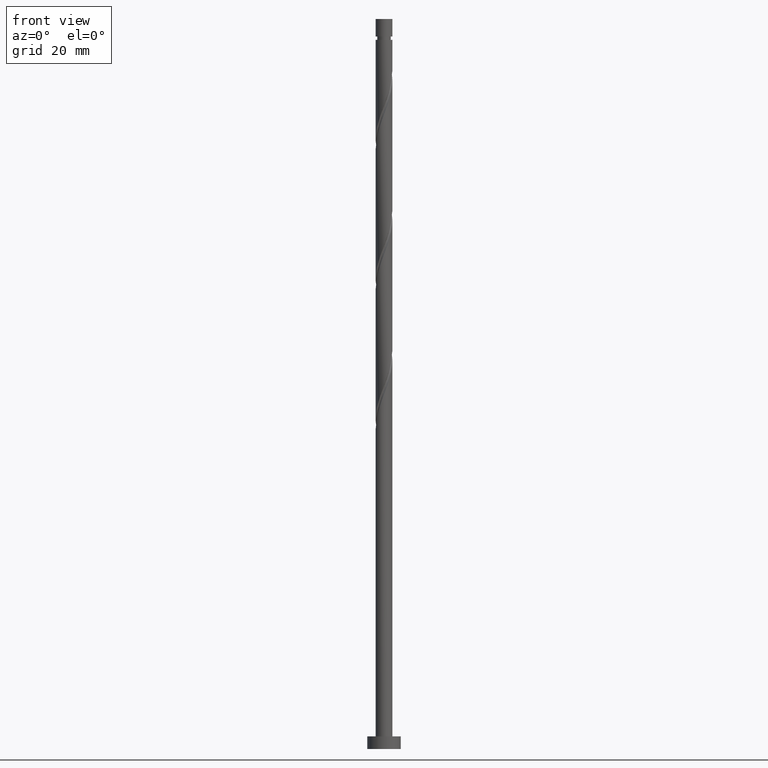
[diagram: clean part render]
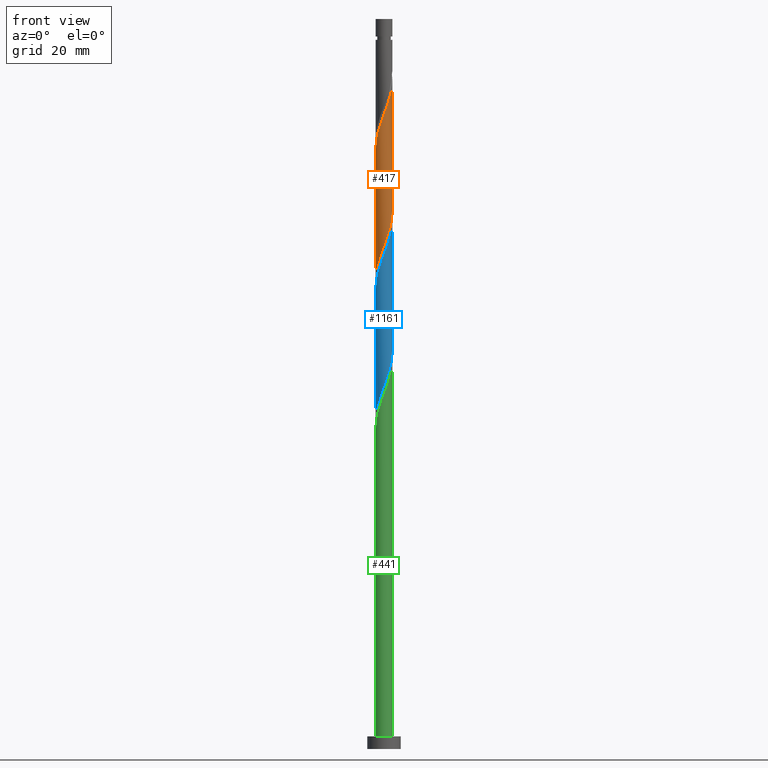
[diagram: same view with three faces highlighted in distinct colors, each labeled with its STEP entity id]
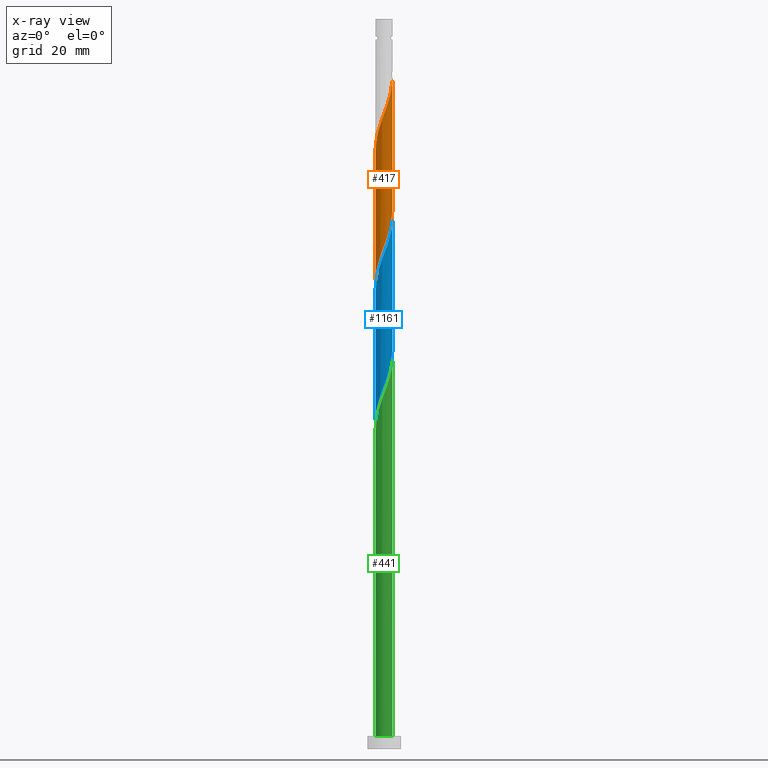
[diagram: x-ray of the same camera — body ghosted, the three highlighted faces saturated]
A machine part, front view with three faces highlighted in distinct colors.
The next image is the same camera in x-ray (body ghosted, the three faces saturated) — at least one of them is partly hidden behind the body in this view.
Their STEP definitions:

[orange] entity #417 — the highlighted cylindrical surface (edge-blend (fillet) strip) has radius 2 mm, axis along (-0, -0, -1).
#7 = FACE_OUTER_BOUND ( 'NONE', #585, .T. ) ;
#161 = VERTEX_POINT ( 'NONE', #1115 ) ;
#184 = DIRECTION ( 'NONE',  ( -1.000000000000000000, 0.000000000000000000, 0.000000000000000000 ) ) ;
#203 = CARTESIAN_POINT ( 'NONE',  ( -1.907602967534735461, -0.6560338701139452056, 144.5459606301413658 ) ) ;
#215 = CARTESIAN_POINT ( 'NONE',  ( 1.980049565276635670, -0.3856594865056713339, 158.4348495190302799 ) ) ;
#229 = CARTESIAN_POINT ( 'NONE',  ( 2.000000000000000000, 2.449293598294706414E-16, 173.8199999999999932 ) ) ;
#241 = CARTESIAN_POINT ( 'NONE',  ( -1.812764992401015629, -0.8849929959097647680, 113.9904050745857944 ) ) ;
#251 = CARTESIAN_POINT ( 'NONE',  ( 1.324015695162686468, -1.521943481029062628, 123.7126272968080087 ) ) ;
#260 = CARTESIAN_POINT ( 'NONE',  ( 1.907602967534731242, -0.6560338701139463158, 126.4904050745858086 ) ) ;
#324 = DIRECTION ( 'NONE',  ( -0.000000000000000000, -0.000000000000000000, -1.000000000000000000 ) ) ;
#330 = CARTESIAN_POINT ( 'NONE',  ( 0.6560338701139452056, -1.907602967534735461, 152.8792939634747086 ) ) ;
#341 = CARTESIAN_POINT ( 'NONE',  ( -1.672808912829665706, -1.127404036555502254, 145.9348495190303083 ) ) ;
#348 = CARTESIAN_POINT ( 'NONE',  ( 1.127404036555502032, -1.672808912829666150, 154.2681828523635374 ) ) ;
#365 = CARTESIAN_POINT ( 'NONE',  ( 1.999999999999999112, -0.2010075630518445844, 127.7149898050510757 ) ) ;
#374 = CARTESIAN_POINT ( 'NONE',  ( 0.8849929959097647680, -1.812764992401015629, 122.3237384079191372 ) ) ;
#405 = CARTESIAN_POINT ( 'NONE',  ( 1.959999999999999520, -0.3979949748426491740, 127.1848495190302799 ) ) ;
#417 = ADVANCED_FACE ( 'NONE', ( #7 ), #1100, .T. ) ;
#469 =( BOUNDED_CURVE ( )  B_SPLINE_CURVE ( 2, ( #1591, #365, #405, #260, #1224, #640, #1084, #251, #1581, #374, #921, #955, #540, #911, #1335, #1054, #1451, #1573, #1045, #1187, #1213, #241, #943, #1479, #1732, #788, #508 ),
 .UNSPECIFIED., .F., .T. ) 
 B_SPLINE_CURVE_WITH_KNOTS ( ( 3, 2, 2, 2, 2, 2, 2, 2, 2, 2, 2, 2, 2, 3 ),
 ( 0.5545317669814463502, 0.5625000000000000000, 0.5729166666666666297, 0.5833333333333333703, 0.5937500000000000000, 0.6041666666666666297, 0.6145833333333333703, 0.6250000000000000000, 0.6354166666666666297, 0.6458333333333333703, 0.6562500000000000000, 0.6666666666666666297, 0.6770833333333333703, 0.6795317669814463502 ),
 .UNSPECIFIED. ) 
 CURVE ( )  GEOMETRIC_REPRESENTATION_ITEM ( )  RATIONAL_B_SPLINE_CURVE ( ( 0.9062941362546468316, 0.9031415850403511358, 0.9090909090909264911, 0.9013135103398449699, 0.9090909090909264911, 0.9013135103398449699, 0.9090909090909264911, 0.9013135103398449699, 0.9090909090909264911, 0.9013135103398449699, 0.9090909090909264911, 0.9013135103398449699, 0.9090909090909264911, 0.9013135103398449699, 0.9090909090909264911, 0.9013135103398449699, 0.9090909090909264911, 0.9013135103398449699, 0.9090909090909264911, 0.9013135103398449699, 0.9090909090909264911, 0.9013135103398449699, 0.9090909090909264911, 0.9013135103398449699, 0.9090909090909264911, 0.9072628343904202142, 0.9062941362546468316 ) ) 
 REPRESENTATION_ITEM ( '' )  );
#472 = CARTESIAN_POINT ( 'NONE',  ( -0.6353262412077193000, -1.896407278838826871, 149.4070717412525084 ) ) ;
#499 = CARTESIAN_POINT ( 'NONE',  ( 1.996223298870952956, -0.1228517034671601366, 159.1292939634747086 ) ) ;
#508 = CARTESIAN_POINT ( 'NONE',  ( -1.999999999999999556, 2.587004708746268462E-15, 111.5817495075736616 ) ) ;
#540 = CARTESIAN_POINT ( 'NONE',  ( 0.1228517034671573194, -1.996223298870950735, 120.2404050745858370 ) ) ;
#585 = EDGE_LOOP ( 'NONE', ( #671, #1287, #1235, #1726 ) ) ;
#617 = CARTESIAN_POINT ( 'NONE',  ( -1.960000000000002629, -0.3979949748426490075, 143.8515161856969655 ) ) ;
#625 = CARTESIAN_POINT ( 'NONE',  ( -2.000000000000003997, -0.2010075630518375900, 143.3213758996760703 ) ) ;
#640 = CARTESIAN_POINT ( 'NONE',  ( 1.672808912829662153, -1.127404036555502698, 125.1015161856968945 ) ) ;
#644 = VECTOR ( 'NONE', #324, 1000.000000000000000 ) ;
#671 = ORIENTED_EDGE ( 'NONE', *, *, #1557, .F. ) ;
#684 = VERTEX_POINT ( 'NONE', #919 ) ;
#755 = CARTESIAN_POINT ( 'NONE',  ( 1.667354236715041127, -1.104504345536229115, 156.3515161856969371 ) ) ;
#788 = CARTESIAN_POINT ( 'NONE',  ( -2.000000000000000000, -0.06148390331534502040, 111.7449131956018107 ) ) ;
#838 = CARTESIAN_POINT ( 'NONE',  ( 0.000000000000000000, 0.000000000000000000, 173.8199999999999932 ) ) ;
#869 = CARTESIAN_POINT ( 'NONE',  ( -2.000000000000000000, 0.000000000000000000, 173.8199999999999932 ) ) ;
#877 = CARTESIAN_POINT ( 'NONE',  ( 2.000000000000002665, -2.243067666542991822E-16, 159.4546161971535128 ) ) ;
#886 = CARTESIAN_POINT ( 'NONE',  ( -1.324015695162690465, -1.521943481029064182, 147.3237384079191088 ) ) ;
#895 = AXIS2_PLACEMENT_3D ( 'NONE', #838, #1666, #184 ) ;
#896 = CARTESIAN_POINT ( 'NONE',  ( 1.521943481029064182, -1.324015695162690465, 155.6570717412525084 ) ) ;
#905 = CARTESIAN_POINT ( 'NONE',  ( 1.324673758792282996, -1.498412303996178307, 154.9626272968080229 ) ) ;
#911 = CARTESIAN_POINT ( 'NONE',  ( -0.1399560795713535588, -2.012397032465267355, 119.5459606301413800 ) ) ;
#919 = CARTESIAN_POINT ( 'NONE',  ( 2.000000000000000000, 2.459897540975497552E-15, 128.2484161742403614 ) ) ;
#921 = CARTESIAN_POINT ( 'NONE',  ( 0.6353262412077166355, -1.896407278838824650, 121.6292939634747228 ) ) ;
#943 = CARTESIAN_POINT ( 'NONE',  ( -1.896407278838824428, -0.6353262412077168575, 113.2959606301413942 ) ) ;
#955 = CARTESIAN_POINT ( 'NONE',  ( 0.3856594865056680588, -1.980049565276632562, 120.9348495190302657 ) ) ;
#1009 = LINE ( 'NONE', #869, #644 ) ;
#1022 = CARTESIAN_POINT ( 'NONE',  ( 0.1399560795713520878, -2.012397032465270019, 151.4904050745857944 ) ) ;
#1031 = CARTESIAN_POINT ( 'NONE',  ( -2.000000000000002665, -1.009380449944346221E-15, 142.7879495304868556 ) ) ;
#1039 = CARTESIAN_POINT ( 'NONE',  ( -0.8849929959097675436, -1.812764992401017849, 148.7126272968079945 ) ) ;
#1045 = CARTESIAN_POINT ( 'NONE',  ( -1.324673758792283218, -1.498412303996174755, 116.0737384079191514 ) ) ;
#1054 = CARTESIAN_POINT ( 'NONE',  ( -0.6560338701139454276, -1.907602967534731686, 118.1570717412524800 ) ) ;
#1084 = CARTESIAN_POINT ( 'NONE',  ( 1.498412303996174755, -1.324673758792283218, 124.4070717412524942 ) ) ;
#1100 = CYLINDRICAL_SURFACE ( 'NONE', #895, 2.000000000000000000 ) ;
#1115 = CARTESIAN_POINT ( 'NONE',  ( -1.999999999999999556, 2.587004708746268462E-15, 111.5817495075736616 ) ) ;
#1133 =( BOUNDED_CURVE ( )  B_SPLINE_CURVE ( 2, ( #1031, #625, #617, #203, #1553, #341, #1560, #886, #1176, #1039, #472, #1399, #1418, #1022, #1670, #330, #1699, #348, #905, #896, #755, #1436, #1430, #215, #499, #1150, #877 ),
 .UNSPECIFIED., .F., .T. ) 
 B_SPLINE_CURVE_WITH_KNOTS ( ( 3, 2, 2, 2, 2, 2, 2, 2, 2, 2, 2, 2, 2, 3 ),
 ( 0.5545317669814460171, 0.5625000000000000000, 0.5729166666666667407, 0.5833333333333332593, 0.5937500000000000000, 0.6041666666666667407, 0.6145833333333332593, 0.6250000000000000000, 0.6354166666666667407, 0.6458333333333332593, 0.6562500000000000000, 0.6666666666666667407, 0.6770833333333332593, 0.6795317669814456840 ),
 .UNSPECIFIED. ) 
 CURVE ( )  GEOMETRIC_REPRESENTATION_ITEM ( )  RATIONAL_B_SPLINE_CURVE ( ( 0.9062941362546530488, 0.9031415850403570200, 0.9090909090909324863, 0.9013135103398509651, 0.9090909090909324863, 0.9013135103398509651, 0.9090909090909324863, 0.9013135103398509651, 0.9090909090909324863, 0.9013135103398509651, 0.9090909090909324863, 0.9013135103398509651, 0.9090909090909324863, 0.9013135103398509651, 0.9090909090909324863, 0.9013135103398509651, 0.9090909090909324863, 0.9013135103398509651, 0.9090909090909324863, 0.9013135103398509651, 0.9090909090909324863, 0.9013135103398509651, 0.9090909090909324863, 0.9013135103398509651, 0.9090909090909324863, 0.9072628343904266535, 0.9062941362546532709 ) ) 
 REPRESENTATION_ITEM ( '' )  );
#1150 = CARTESIAN_POINT ( 'NONE',  ( 2.000000000000002220, -0.06148390331536186110, 159.2914525091253779 ) ) ;
#1176 = CARTESIAN_POINT ( 'NONE',  ( -1.104504345536228449, -1.667354236715041349, 148.0181828523635943 ) ) ;
#1187 = CARTESIAN_POINT ( 'NONE',  ( -1.521943481029062628, -1.324015695162687134, 115.3792939634746659 ) ) ;
#1213 = CARTESIAN_POINT ( 'NONE',  ( -1.667354236715039573, -1.104504345536226673, 114.6848495190302799 ) ) ;
#1224 = CARTESIAN_POINT ( 'NONE',  ( 1.790205940182196809, -0.8917189533347242847, 125.7959606301413658 ) ) ;
#1235 = ORIENTED_EDGE ( 'NONE', *, *, #1429, .T. ) ;
#1287 = ORIENTED_EDGE ( 'NONE', *, *, #1334, .F. ) ;
#1334 = EDGE_CURVE ( 'NONE', #1406, #1415, #1133, .T. ) ;
#1335 = CARTESIAN_POINT ( 'NONE',  ( -0.3979949748426491185, -1.959999999999999520, 118.8515161856969229 ) ) ;
#1399 = CARTESIAN_POINT ( 'NONE',  ( -0.3856594865056703347, -1.980049565276635670, 150.1015161856969371 ) ) ;
#1406 = VERTEX_POINT ( 'NONE', #1409 ) ;
#1409 = CARTESIAN_POINT ( 'NONE',  ( -2.000000000000002665, -1.009380449944346221E-15, 142.7879495304868556 ) ) ;
#1415 = VERTEX_POINT ( 'NONE', #1545 ) ;
#1418 = CARTESIAN_POINT ( 'NONE',  ( -0.1228517034671591374, -1.996223298870952956, 150.7959606301413658 ) ) ;
#1429 = EDGE_CURVE ( 'NONE', #1406, #161, #1009, .T. ) ;
#1430 = CARTESIAN_POINT ( 'NONE',  ( 1.896407278838826871, -0.6353262412077195220, 157.7404050745858228 ) ) ;
#1436 = CARTESIAN_POINT ( 'NONE',  ( 1.812764992401017849, -0.8849929959097676546, 157.0459606301413373 ) ) ;
#1451 = CARTESIAN_POINT ( 'NONE',  ( -0.8917189533347236186, -1.790205940182197697, 117.4626272968080372 ) ) ;
#1479 = CARTESIAN_POINT ( 'NONE',  ( -1.980049565276631895, -0.3856594865056686139, 112.6015161856969371 ) ) ;
#1541 = VECTOR ( 'NONE', #1611, 1000.000000000000000 ) ;
#1545 = CARTESIAN_POINT ( 'NONE',  ( 2.000000000000002665, -2.243067666542991822E-16, 159.4546161971535128 ) ) ;
#1553 = CARTESIAN_POINT ( 'NONE',  ( -1.790205940182200806, -0.8917189533347239516, 145.2404050745858228 ) ) ;
#1557 = EDGE_CURVE ( 'NONE', #1415, #684, #1706, .T. ) ;
#1560 = CARTESIAN_POINT ( 'NONE',  ( -1.498412303996177641, -1.324673758792283662, 146.6292939634747654 ) ) ;
#1573 = CARTESIAN_POINT ( 'NONE',  ( -1.127404036555501587, -1.672808912829662598, 116.7681828523635801 ) ) ;
#1581 = CARTESIAN_POINT ( 'NONE',  ( 1.104504345536226007, -1.667354236715040239, 123.0181828523635801 ) ) ;
#1591 = CARTESIAN_POINT ( 'NONE',  ( 2.000000000000000000, 2.459897540975497552E-15, 128.2484161742403614 ) ) ;
#1608 = EDGE_CURVE ( 'NONE', #684, #161, #469, .T. ) ;
#1611 = DIRECTION ( 'NONE',  ( -0.000000000000000000, -0.000000000000000000, -1.000000000000000000 ) ) ;
#1666 = DIRECTION ( 'NONE',  ( -0.000000000000000000, -0.000000000000000000, -1.000000000000000000 ) ) ;
#1670 = CARTESIAN_POINT ( 'NONE',  ( 0.3979949748426487854, -1.960000000000002629, 152.1848495190302799 ) ) ;
#1699 = CARTESIAN_POINT ( 'NONE',  ( 0.8917189533347233965, -1.790205940182201028, 153.5737384079191941 ) ) ;
#1706 = LINE ( 'NONE', #229, #1541 ) ;
#1726 = ORIENTED_EDGE ( 'NONE', *, *, #1608, .F. ) ;
#1732 = CARTESIAN_POINT ( 'NONE',  ( -1.996223298870949847, -0.1228517034671579300, 111.9070717412524942 ) ) ;

[blue] entity #1161 — the highlighted cylindrical surface (edge-blend (fillet) strip) has radius 2 mm, axis along (-0, -0, -1).
#22 = CARTESIAN_POINT ( 'NONE',  ( -2.000000000000000000, 0.000000000000000000, 173.8199999999999932 ) ) ;
#60 = CARTESIAN_POINT ( 'NONE',  ( 0.8849929959097647680, -1.812764992401015629, 88.99040507458579441 ) ) ;
#69 = ORIENTED_EDGE ( 'NONE', *, *, #607, .F. ) ;
#71 = CARTESIAN_POINT ( 'NONE',  ( 2.000000000000000000, 2.459897540975497552E-15, 94.91508284090700442 ) ) ;
#73 = CARTESIAN_POINT ( 'NONE',  ( -1.127404036555501587, -1.672808912829662598, 83.43484951903022306 ) ) ;
#91 = CARTESIAN_POINT ( 'NONE',  ( -0.6353262412077193000, -1.896407278838826871, 116.0737384079191514 ) ) ;
#150 = CARTESIAN_POINT ( 'NONE',  ( 0.000000000000000000, 0.000000000000000000, 173.8199999999999932 ) ) ;
#168 = CYLINDRICAL_SURFACE ( 'NONE', #350, 2.000000000000000000 ) ;
#212 =( BOUNDED_CURVE ( )  B_SPLINE_CURVE ( 2, ( #832, #850, #731, #1151, #1651, #1520, #1392, #725, #1198, #522, #91, #1057, #1068, #400, #511, #1585, #378, #948, #1594, #390, #765, #1625, #1615, #419, #967, #1493, #1227 ),
 .UNSPECIFIED., .F., .T. ) 
 B_SPLINE_CURVE_WITH_KNOTS ( ( 3, 2, 2, 2, 2, 2, 2, 2, 2, 2, 2, 2, 2, 3 ),
 ( 0.3045317669814463502, 0.3125000000000000000, 0.3229166666666666297, 0.3333333333333333703, 0.3437500000000000000, 0.3541666666666666297, 0.3645833333333333703, 0.3750000000000000000, 0.3854166666666666297, 0.3958333333333333703, 0.4062500000000000000, 0.4166666666666666297, 0.4270833333333333703, 0.4295317669814465167 ),
 .UNSPECIFIED. ) 
 CURVE ( )  GEOMETRIC_REPRESENTATION_ITEM ( )  RATIONAL_B_SPLINE_CURVE ( ( 0.9062941362546528268, 0.9031415850403572421, 0.9090909090909324863, 0.9013135103398509651, 0.9090909090909324863, 0.9013135103398509651, 0.9090909090909324863, 0.9013135103398509651, 0.9090909090909324863, 0.9013135103398509651, 0.9090909090909324863, 0.9013135103398509651, 0.9090909090909324863, 0.9013135103398509651, 0.9090909090909324863, 0.9013135103398509651, 0.9090909090909324863, 0.9013135103398509651, 0.9090909090909324863, 0.9013135103398509651, 0.9090909090909324863, 0.9013135103398509651, 0.9090909090909324863, 0.9013135103398509651, 0.9090909090909324863, 0.9072628343904260984, 0.9062941362546527158 ) ) 
 REPRESENTATION_ITEM ( '' )  );
#220 = CARTESIAN_POINT ( 'NONE',  ( 2.000000000000000000, -0.2010075630518418643, 94.38165647171774708 ) ) ;
#233 = ORIENTED_EDGE ( 'NONE', *, *, #1309, .T. ) ;
#282 = EDGE_LOOP ( 'NONE', ( #1604, #1634, #233, #69 ) ) ;
#331 = CARTESIAN_POINT ( 'NONE',  ( -2.000000000000000000, -2.975803104280389043E-15, 78.24841617424034723 ) ) ;
#338 = CARTESIAN_POINT ( 'NONE',  ( 0.6353262412077166355, -1.896407278838824650, 88.29596063014137997 ) ) ;
#350 = AXIS2_PLACEMENT_3D ( 'NONE', #150, #715, #1384 ) ;
#357 = CARTESIAN_POINT ( 'NONE',  ( -1.896407278838824428, -0.6353262412077168575, 79.96262729680805137 ) ) ;
#363 = VERTEX_POINT ( 'NONE', #978 ) ;
#378 = CARTESIAN_POINT ( 'NONE',  ( 0.8917189533347233965, -1.790205940182201028, 120.2404050745858655 ) ) ;
#390 = CARTESIAN_POINT ( 'NONE',  ( 1.521943481029064182, -1.324015695162690465, 122.3237384079191656 ) ) ;
#400 = CARTESIAN_POINT ( 'NONE',  ( 0.1399560795713520878, -2.012397032465270019, 118.1570717412524942 ) ) ;
#419 = CARTESIAN_POINT ( 'NONE',  ( 1.980049565276635670, -0.3856594865056713339, 125.1015161856969229 ) ) ;
#427 = FACE_OUTER_BOUND ( 'NONE', #282, .T. ) ;
#446 = DIRECTION ( 'NONE',  ( -0.000000000000000000, -0.000000000000000000, -1.000000000000000000 ) ) ;
#500 = CARTESIAN_POINT ( 'NONE',  ( -1.521943481029062628, -1.324015695162687134, 82.04596063014136575 ) ) ;
#509 = CARTESIAN_POINT ( 'NONE',  ( -1.812764992401015629, -0.8849929959097647680, 80.65707174125246581 ) ) ;
#511 = CARTESIAN_POINT ( 'NONE',  ( 0.3979949748426487854, -1.960000000000002629, 118.8515161856969513 ) ) ;
#522 = CARTESIAN_POINT ( 'NONE',  ( -0.8849929959097675436, -1.812764992401017849, 115.3792939634746944 ) ) ;
#561 = VERTEX_POINT ( 'NONE', #1694 ) ;
#594 = VECTOR ( 'NONE', #446, 1000.000000000000000 ) ;
#607 = EDGE_CURVE ( 'NONE', #1114, #363, #1600, .T. ) ;
#627 = EDGE_CURVE ( 'NONE', #1446, #561, #212, .T. ) ;
#692 = DIRECTION ( 'NONE',  ( -0.000000000000000000, -0.000000000000000000, -1.000000000000000000 ) ) ;
#715 = DIRECTION ( 'NONE',  ( -0.000000000000000000, -0.000000000000000000, -1.000000000000000000 ) ) ;
#720 = CARTESIAN_POINT ( 'NONE',  ( 0.1228517034671573194, -1.996223298870950735, 86.90707174125249423 ) ) ;
#725 = CARTESIAN_POINT ( 'NONE',  ( -1.324015695162690465, -1.521943481029064182, 113.9904050745857944 ) ) ;
#730 = VECTOR ( 'NONE', #692, 1000.000000000000000 ) ;
#731 = CARTESIAN_POINT ( 'NONE',  ( -1.960000000000002629, -0.3979949748426490075, 110.5181828523636085 ) ) ;
#740 = CARTESIAN_POINT ( 'NONE',  ( -2.000000000000002665, -1.674823857685434144E-15, 109.4546161971535412 ) ) ;
#747 = CARTESIAN_POINT ( 'NONE',  ( -1.324673758792283218, -1.498412303996174755, 82.74040507458579441 ) ) ;
#765 = CARTESIAN_POINT ( 'NONE',  ( 1.667354236715041127, -1.104504345536229115, 123.0181828523635801 ) ) ;
#832 = CARTESIAN_POINT ( 'NONE',  ( -2.000000000000002665, -1.674823857685434144E-15, 109.4546161971535412 ) ) ;
#850 = CARTESIAN_POINT ( 'NONE',  ( -2.000000000000002665, -0.2010075630518437517, 109.9880425663427985 ) ) ;
#884 = CARTESIAN_POINT ( 'NONE',  ( 0.3856594865056680588, -1.980049565276632562, 87.60151618569690868 ) ) ;
#903 = CARTESIAN_POINT ( 'NONE',  ( 1.672808912829662153, -1.127404036555502698, 91.76818285236359429 ) ) ;
#912 = CARTESIAN_POINT ( 'NONE',  ( -1.996223298870949847, -0.1228517034671579300, 78.57373840791917985 ) ) ;
#934 = CARTESIAN_POINT ( 'NONE',  ( 2.000000000000000000, 2.449293598294706414E-16, 173.8199999999999932 ) ) ;
#948 = CARTESIAN_POINT ( 'NONE',  ( 1.127404036555502032, -1.672808912829666150, 120.9348495190302799 ) ) ;
#967 = CARTESIAN_POINT ( 'NONE',  ( 1.996223298870952956, -0.1228517034671601366, 125.7959606301413658 ) ) ;
#978 = CARTESIAN_POINT ( 'NONE',  ( -2.000000000000000000, -2.975803104280389043E-15, 78.24841617424034723 ) ) ;
#1020 = CARTESIAN_POINT ( 'NONE',  ( 1.104504345536226007, -1.667354236715040239, 89.68484951903030833 ) ) ;
#1023 = CARTESIAN_POINT ( 'NONE',  ( -1.667354236715039573, -1.104504345536226673, 81.35151618569692289 ) ) ;
#1032 = CARTESIAN_POINT ( 'NONE',  ( -0.3979949748426491185, -1.959999999999999520, 85.51818285236359429 ) ) ;
#1044 = EDGE_CURVE ( 'NONE', #561, #1114, #1056, .T. ) ;
#1056 = LINE ( 'NONE', #934, #730 ) ;
#1057 = CARTESIAN_POINT ( 'NONE',  ( -0.3856594865056703347, -1.980049565276635670, 116.7681828523636085 ) ) ;
#1068 = CARTESIAN_POINT ( 'NONE',  ( -0.1228517034671591374, -1.996223298870952956, 117.4626272968080229 ) ) ;
#1114 = VERTEX_POINT ( 'NONE', #1583 ) ;
#1127 = CARTESIAN_POINT ( 'NONE',  ( -0.1399560795713535588, -2.012397032465267355, 86.21262729680805137 ) ) ;
#1151 = CARTESIAN_POINT ( 'NONE',  ( -1.907602967534735461, -0.6560338701139452056, 111.2126272968080229 ) ) ;
#1161 = ADVANCED_FACE ( 'NONE', ( #427 ), #168, .T. ) ;
#1178 = CARTESIAN_POINT ( 'NONE',  ( -0.6560338701139454276, -1.907602967534731686, 84.82373840791915143 ) ) ;
#1198 = CARTESIAN_POINT ( 'NONE',  ( -1.104504345536228449, -1.667354236715041349, 114.6848495190302657 ) ) ;
#1227 = CARTESIAN_POINT ( 'NONE',  ( 2.000000000000002665, 4.336597488649785241E-16, 126.1212828638201842 ) ) ;
#1250 = LINE ( 'NONE', #22, #594 ) ;
#1288 = CARTESIAN_POINT ( 'NONE',  ( 1.324015695162686468, -1.521943481029062628, 90.37929396347470856 ) ) ;
#1304 = CARTESIAN_POINT ( 'NONE',  ( 1.790205940182196809, -0.8917189533347242847, 92.46262729680805137 ) ) ;
#1309 = EDGE_CURVE ( 'NONE', #1446, #363, #1250, .T. ) ;
#1384 = DIRECTION ( 'NONE',  ( -1.000000000000000000, 0.000000000000000000, 0.000000000000000000 ) ) ;
#1392 = CARTESIAN_POINT ( 'NONE',  ( -1.498412303996177641, -1.324673758792283662, 113.2959606301413942 ) ) ;
#1407 = CARTESIAN_POINT ( 'NONE',  ( 1.498412303996174755, -1.324673758792283218, 91.07373840791916564 ) ) ;
#1426 = CARTESIAN_POINT ( 'NONE',  ( 1.959999999999999520, -0.3979949748426491740, 93.85151618569693710 ) ) ;
#1446 = VERTEX_POINT ( 'NONE', #740 ) ;
#1493 = CARTESIAN_POINT ( 'NONE',  ( 2.000000000000003109, -0.06148390331534306363, 125.9581191757920493 ) ) ;
#1520 = CARTESIAN_POINT ( 'NONE',  ( -1.672808912829665706, -1.127404036555502254, 112.6015161856969229 ) ) ;
#1546 = CARTESIAN_POINT ( 'NONE',  ( -1.999999999999999556, -0.06148390331534778208, 78.41157986226848209 ) ) ;
#1574 = CARTESIAN_POINT ( 'NONE',  ( -1.980049565276631895, -0.3856594865056686139, 79.26818285236358008 ) ) ;
#1583 = CARTESIAN_POINT ( 'NONE',  ( 2.000000000000000000, 2.459897540975497552E-15, 94.91508284090700442 ) ) ;
#1585 = CARTESIAN_POINT ( 'NONE',  ( 0.6560338701139452056, -1.907602967534735461, 119.5459606301413658 ) ) ;
#1594 = CARTESIAN_POINT ( 'NONE',  ( 1.324673758792282996, -1.498412303996178307, 121.6292939634747086 ) ) ;
#1600 =( BOUNDED_CURVE ( )  B_SPLINE_CURVE ( 2, ( #71, #220, #1426, #1676, #1304, #903, #1407, #1288, #1020, #60, #338, #884, #720, #1127, #1032, #1178, #1700, #73, #747, #500, #1023, #509, #357, #1574, #912, #1546, #331 ),
 .UNSPECIFIED., .F., .T. ) 
 B_SPLINE_CURVE_WITH_KNOTS ( ( 3, 2, 2, 2, 2, 2, 2, 2, 2, 2, 2, 2, 2, 3 ),
 ( 0.8045317669814462391, 0.8125000000000000000, 0.8229166666666666297, 0.8333333333333333703, 0.8437500000000000000, 0.8541666666666666297, 0.8645833333333333703, 0.8750000000000000000, 0.8854166666666666297, 0.8958333333333333703, 0.9062500000000000000, 0.9166666666666666297, 0.9270833333333333703, 0.9295317669814462391 ),
 .UNSPECIFIED. ) 
 CURVE ( )  GEOMETRIC_REPRESENTATION_ITEM ( )  RATIONAL_B_SPLINE_CURVE ( ( 0.9062941362546469426, 0.9031415850403510248, 0.9090909090909264911, 0.9013135103398449699, 0.9090909090909264911, 0.9013135103398449699, 0.9090909090909264911, 0.9013135103398449699, 0.9090909090909264911, 0.9013135103398449699, 0.9090909090909264911, 0.9013135103398449699, 0.9090909090909264911, 0.9013135103398449699, 0.9090909090909264911, 0.9013135103398449699, 0.9090909090909264911, 0.9013135103398449699, 0.9090909090909264911, 0.9013135103398449699, 0.9090909090909264911, 0.9013135103398449699, 0.9090909090909264911, 0.9013135103398449699, 0.9090909090909264911, 0.9072628343904203252, 0.9062941362546469426 ) ) 
 REPRESENTATION_ITEM ( '' )  );
#1604 = ORIENTED_EDGE ( 'NONE', *, *, #1044, .F. ) ;
#1615 = CARTESIAN_POINT ( 'NONE',  ( 1.896407278838826871, -0.6353262412077195220, 124.4070717412524658 ) ) ;
#1625 = CARTESIAN_POINT ( 'NONE',  ( 1.812764992401017849, -0.8849929959097676546, 123.7126272968080372 ) ) ;
#1634 = ORIENTED_EDGE ( 'NONE', *, *, #627, .F. ) ;
#1651 = CARTESIAN_POINT ( 'NONE',  ( -1.790205940182200806, -0.8917189533347239516, 111.9070717412525084 ) ) ;
#1676 = CARTESIAN_POINT ( 'NONE',  ( 1.907602967534731242, -0.6560338701139463158, 93.15707174125248002 ) ) ;
#1694 = CARTESIAN_POINT ( 'NONE',  ( 2.000000000000002665, 4.336597488649785241E-16, 126.1212828638201842 ) ) ;
#1700 = CARTESIAN_POINT ( 'NONE',  ( -0.8917189533347236186, -1.790205940182197697, 84.12929396347469435 ) ) ;

[green] entity #441 — the highlighted cylindrical surface (edge-blend (fillet) strip) has radius 2 mm, axis along (-0, -0, -1).
#27 = CARTESIAN_POINT ( 'NONE',  ( 1.980049565276635670, -0.3856594865056713339, 91.76818285236362271 ) ) ;
#33 = ORIENTED_EDGE ( 'NONE', *, *, #1240, .T. ) ;
#49 = LINE ( 'NONE', #602, #864 ) ;
#80 = DIRECTION ( 'NONE',  ( -0.000000000000000000, -0.000000000000000000, -1.000000000000000000 ) ) ;
#125 = CARTESIAN_POINT ( 'NONE',  ( 2.000000000000002665, 4.336597488649785241E-16, 92.78794953048682714 ) ) ;
#177 = AXIS2_PLACEMENT_3D ( 'NONE', #1129, #460, #863 ) ;
#187 = CARTESIAN_POINT ( 'NONE',  ( -2.000000000000000000, 0.000000000000000000, 173.8199999999999932 ) ) ;
#197 = FACE_OUTER_BOUND ( 'NONE', #793, .T. ) ;
#256 = VERTEX_POINT ( 'NONE', #611 ) ;
#285 = CARTESIAN_POINT ( 'NONE',  ( 1.324673758792282996, -1.498412303996178307, 88.29596063014136575 ) ) ;
#298 = ORIENTED_EDGE ( 'NONE', *, *, #1374, .F. ) ;
#380 = ORIENTED_EDGE ( 'NONE', *, *, #1357, .T. ) ;
#381 = CIRCLE ( 'NONE', #471, 2.000000000000000000 ) ;
#393 = CARTESIAN_POINT ( 'NONE',  ( -1.498412303996177641, -1.324673758792283662, 79.96262729680806558 ) ) ;
#399 =( BOUNDED_CURVE ( )  B_SPLINE_CURVE ( 2, ( #655, #1222, #1598, #547, #1201, #1720, #393, #527, #1476, #1062, #814, #830, #1139, #704, #1381, #1006, #1658, #442, #285, #572, #1366, #1241, #581, #27, #1647, #729, #865 ),
 .UNSPECIFIED., .F., .T. ) 
 B_SPLINE_CURVE_WITH_KNOTS ( ( 3, 2, 2, 2, 2, 2, 2, 2, 2, 2, 2, 2, 2, 3 ),
 ( 0.05453176698144671791, 0.06250000000000000000, 0.07291666666666662966, 0.08333333333333337034, 0.09375000000000000000, 0.1041666666666666297, 0.1145833333333333703, 0.1250000000000000000, 0.1354166666666666297, 0.1458333333333333703, 0.1562500000000000000, 0.1666666666666666297, 0.1770833333333333703, 0.1795317669814459616 ),
 .UNSPECIFIED. ) 
 CURVE ( )  GEOMETRIC_REPRESENTATION_ITEM ( )  RATIONAL_B_SPLINE_CURVE ( ( 0.9062941362546523827, 0.9031415850403574641, 0.9090909090909324863, 0.9013135103398509651, 0.9090909090909324863, 0.9013135103398509651, 0.9090909090909324863, 0.9013135103398509651, 0.9090909090909324863, 0.9013135103398509651, 0.9090909090909324863, 0.9013135103398509651, 0.9090909090909324863, 0.9013135103398509651, 0.9090909090909324863, 0.9013135103398509651, 0.9090909090909324863, 0.9013135103398509651, 0.9090909090909324863, 0.9013135103398509651, 0.9090909090909324863, 0.9013135103398509651, 0.9090909090909324863, 0.9013135103398509651, 0.9090909090909324863, 0.9072628343904265424, 0.9062941362546530488 ) ) 
 REPRESENTATION_ITEM ( '' )  );
#441 = ADVANCED_FACE ( 'NONE', ( #197 ), #758, .T. ) ;
#442 = CARTESIAN_POINT ( 'NONE',  ( 1.127404036555502032, -1.672808912829666150, 87.60151618569690868 ) ) ;
#460 = DIRECTION ( 'NONE',  ( -0.000000000000000000, -0.000000000000000000, -1.000000000000000000 ) ) ;
#471 = AXIS2_PLACEMENT_3D ( 'NONE', #966, #1266, #1376 ) ;
#527 = CARTESIAN_POINT ( 'NONE',  ( -1.324015695162690465, -1.521943481029064182, 80.65707174125249423 ) ) ;
#545 = ORIENTED_EDGE ( 'NONE', *, *, #808, .F. ) ;
#547 = CARTESIAN_POINT ( 'NONE',  ( -1.907602967534735461, -0.6560338701139452056, 77.87929396347469435 ) ) ;
#572 = CARTESIAN_POINT ( 'NONE',  ( 1.521943481029064182, -1.324015695162690465, 88.99040507458579441 ) ) ;
#581 = CARTESIAN_POINT ( 'NONE',  ( 1.896407278838826871, -0.6353262412077195220, 91.07373840791916564 ) ) ;
#602 = CARTESIAN_POINT ( 'NONE',  ( 2.000000000000000000, 2.449293598294706414E-16, 173.8199999999999932 ) ) ;
#611 = CARTESIAN_POINT ( 'NONE',  ( -2.000000000000002665, -1.674823857685434144E-15, 76.12128286382021258 ) ) ;
#655 = CARTESIAN_POINT ( 'NONE',  ( -2.000000000000002665, -1.674823857685434144E-15, 76.12128286382021258 ) ) ;
#704 = CARTESIAN_POINT ( 'NONE',  ( 0.1399560795713520878, -2.012397032465270019, 84.82373840791913722 ) ) ;
#729 = CARTESIAN_POINT ( 'NONE',  ( 2.000000000000002220, -0.06148390331535701081, 92.62478584245864965 ) ) ;
#758 = CYLINDRICAL_SURFACE ( 'NONE', #177, 2.000000000000000000 ) ;
#793 = EDGE_LOOP ( 'NONE', ( #298, #545, #380, #33 ) ) ;
#808 = EDGE_CURVE ( 'NONE', #256, #1644, #399, .T. ) ;
#814 = CARTESIAN_POINT ( 'NONE',  ( -0.6353262412077193000, -1.896407278838826871, 82.74040507458585125 ) ) ;
#830 = CARTESIAN_POINT ( 'NONE',  ( -0.3856594865056703347, -1.980049565276635670, 83.43484951903025149 ) ) ;
#863 = DIRECTION ( 'NONE',  ( -1.000000000000000000, 0.000000000000000000, 0.000000000000000000 ) ) ;
#864 = VECTOR ( 'NONE', #1142, 1000.000000000000000 ) ;
#865 = CARTESIAN_POINT ( 'NONE',  ( 2.000000000000002665, 4.336597488649785241E-16, 92.78794953048682714 ) ) ;
#966 = CARTESIAN_POINT ( 'NONE',  ( 0.000000000000000000, 0.000000000000000000, 3.000000000000000000 ) ) ;
#1006 = CARTESIAN_POINT ( 'NONE',  ( 0.6560338701139452056, -1.907602967534735461, 86.21262729680806558 ) ) ;
#1062 = CARTESIAN_POINT ( 'NONE',  ( -0.8849929959097675436, -1.812764992401017849, 82.04596063014136575 ) ) ;
#1119 = CARTESIAN_POINT ( 'NONE',  ( 2.000000000000000000, 2.449293598294706414E-16, 3.000000000000000000 ) ) ;
#1129 = CARTESIAN_POINT ( 'NONE',  ( 0.000000000000000000, 0.000000000000000000, 173.8199999999999932 ) ) ;
#1139 = CARTESIAN_POINT ( 'NONE',  ( -0.1228517034671591374, -1.996223298870952956, 84.12929396347473698 ) ) ;
#1142 = DIRECTION ( 'NONE',  ( -0.000000000000000000, -0.000000000000000000, -1.000000000000000000 ) ) ;
#1166 = VERTEX_POINT ( 'NONE', #1119 ) ;
#1201 = CARTESIAN_POINT ( 'NONE',  ( -1.790205940182200806, -0.8917189533347239516, 78.57373840791915143 ) ) ;
#1222 = CARTESIAN_POINT ( 'NONE',  ( -2.000000000000000000, -0.2010075630518529111, 76.65470923300946993 ) ) ;
#1240 = EDGE_CURVE ( 'NONE', #1456, #1166, #381, .T. ) ;
#1241 = CARTESIAN_POINT ( 'NONE',  ( 1.812764992401017849, -0.8849929959097676546, 90.37929396347470856 ) ) ;
#1266 = DIRECTION ( 'NONE',  ( 0.000000000000000000, 0.000000000000000000, 1.000000000000000000 ) ) ;
#1283 = CARTESIAN_POINT ( 'NONE',  ( -2.000000000000000000, 0.000000000000000000, 3.000000000000000000 ) ) ;
#1298 = LINE ( 'NONE', #187, #1622 ) ;
#1357 = EDGE_CURVE ( 'NONE', #256, #1456, #1298, .T. ) ;
#1366 = CARTESIAN_POINT ( 'NONE',  ( 1.667354236715041127, -1.104504345536229115, 89.68484951903029412 ) ) ;
#1374 = EDGE_CURVE ( 'NONE', #1644, #1166, #49, .T. ) ;
#1376 = DIRECTION ( 'NONE',  ( 1.000000000000000000, 0.000000000000000000, 0.000000000000000000 ) ) ;
#1381 = CARTESIAN_POINT ( 'NONE',  ( 0.3979949748426487854, -1.960000000000002629, 85.51818285236356587 ) ) ;
#1456 = VERTEX_POINT ( 'NONE', #1283 ) ;
#1476 = CARTESIAN_POINT ( 'NONE',  ( -1.104504345536228449, -1.667354236715041349, 81.35151618569692289 ) ) ;
#1598 = CARTESIAN_POINT ( 'NONE',  ( -1.960000000000002629, -0.3979949748426490075, 77.18484951903025149 ) ) ;
#1622 = VECTOR ( 'NONE', #80, 1000.000000000000000 ) ;
#1644 = VERTEX_POINT ( 'NONE', #125 ) ;
#1647 = CARTESIAN_POINT ( 'NONE',  ( 1.996223298870952956, -0.1228517034671601366, 92.46262729680800874 ) ) ;
#1658 = CARTESIAN_POINT ( 'NONE',  ( 0.8917189533347233965, -1.790205940182201028, 86.90707174125249423 ) ) ;
#1720 = CARTESIAN_POINT ( 'NONE',  ( -1.672808912829665706, -1.127404036555502254, 79.26818285236360850 ) ) ;